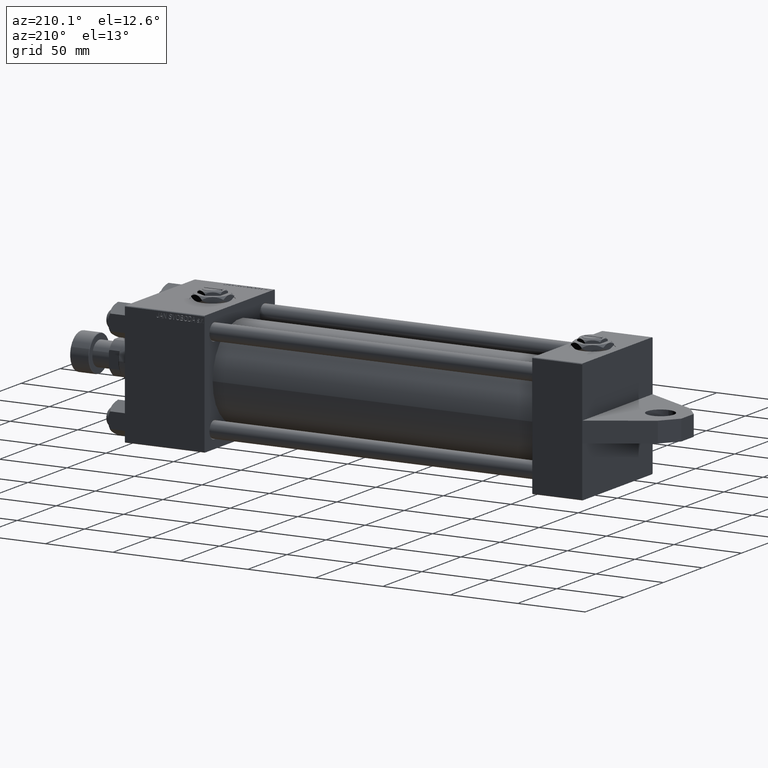
[diagram: clean part render]
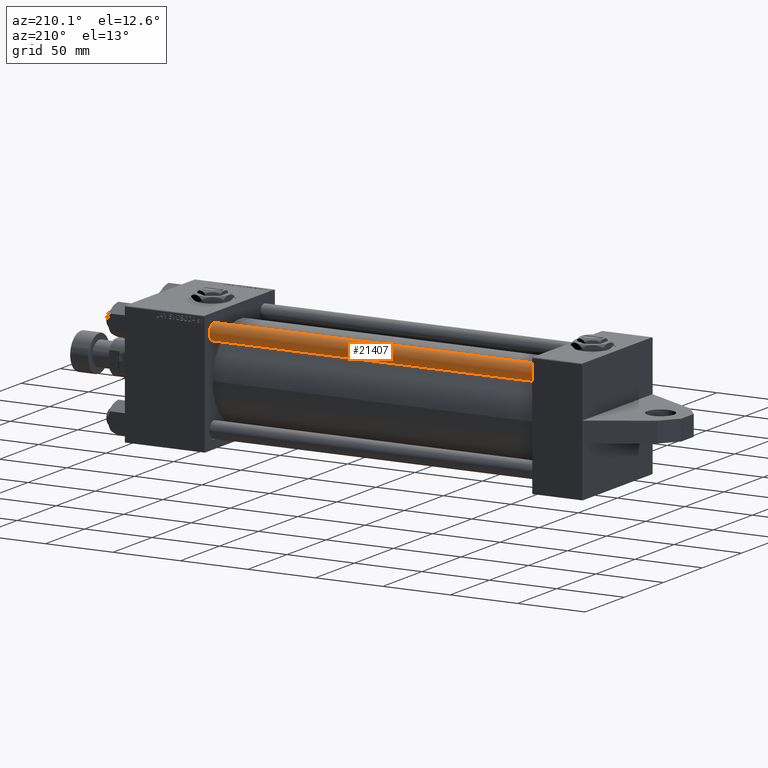
[diagram: same view with one face highlighted and labeled with its STEP entity id]
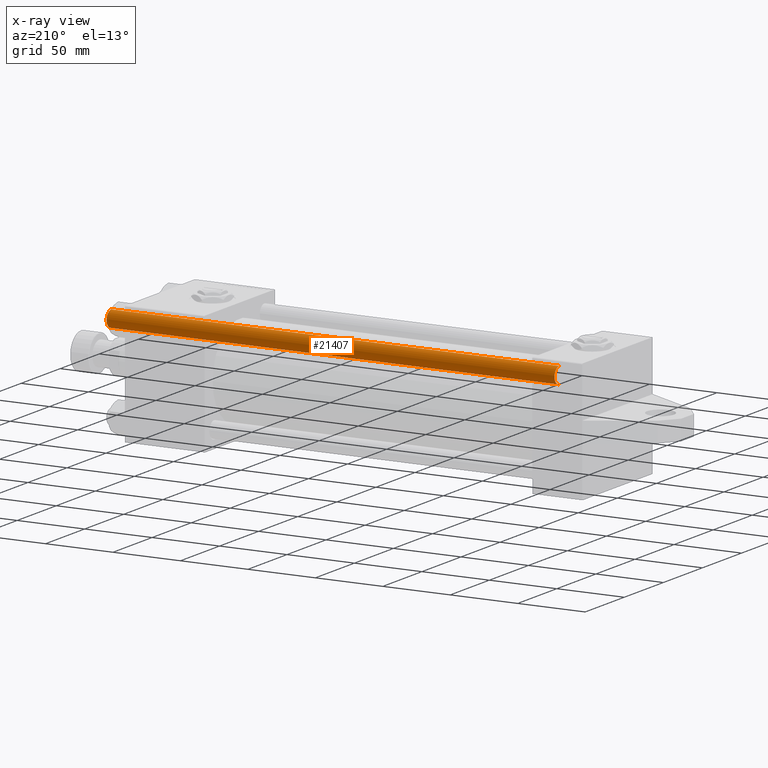
[diagram: x-ray of the same camera — body ghosted, the highlighted face saturated]
A machine part, auxiliary view. The second image highlights one B-rep face of the part: STEP entity #21407.
The next image is the same camera in x-ray: the body ghosted, the highlighted face saturated — about 0% of this face is hidden behind the body in this view.
In plain terms, the highlighted cylindrical surface (edge-blend (fillet) strip) has radius 6 mm, axis along (-1, 0, -0).
Its self-contained STEP definition (entity closure, byte-faithful):
#1582 = CARTESIAN_POINT ( 'NONE',  ( 0.000000000000000000, 0.000000000000000000, 333.0000000000000000 ) ) ;
#1717 = EDGE_CURVE ( 'NONE', #11757, #24730, #18536, .T. ) ;
#2237 = ORIENTED_EDGE ( 'NONE', *, *, #36219, .F. ) ;
#2328 = DIRECTION ( 'NONE',  ( 1.000000000000000000, 0.000000000000000000, 0.000000000000000000 ) ) ;
#4283 = AXIS2_PLACEMENT_3D ( 'NONE', #1582, #38440, #19508 ) ;
#6259 = CARTESIAN_POINT ( 'NONE',  ( 0.000000000000000000, 0.000000000000000000, 0.5000000000000004441 ) ) ;
#7567 = AXIS2_PLACEMENT_3D ( 'NONE', #41510, #7589, #26281 ) ;
#7589 = DIRECTION ( 'NONE',  ( 0.000000000000000000, 0.000000000000000000, -1.000000000000000000 ) ) ;
#8702 = CYLINDRICAL_SURFACE ( 'NONE', #4283, 6.000000000000000888 ) ;
#10409 = ORIENTED_EDGE ( 'NONE', *, *, #10697, .T. ) ;
#10697 = EDGE_CURVE ( 'NONE', #24730, #13150, #40328, .T. ) ;
#11757 = VERTEX_POINT ( 'NONE', #24062 ) ;
#12371 = CARTESIAN_POINT ( 'NONE',  ( 6.000000000000000888, 7.347880794884120722E-16, 332.5000000000001137 ) ) ;
#13150 = VERTEX_POINT ( 'NONE', #27160 ) ;
#14982 = DIRECTION ( 'NONE',  ( -0.000000000000000000, -0.000000000000000000, -1.000000000000000000 ) ) ;
#17689 = DIRECTION ( 'NONE',  ( -0.000000000000000000, -0.000000000000000000, -1.000000000000000000 ) ) ;
#18019 = DIRECTION ( 'NONE',  ( -0.000000000000000000, -0.000000000000000000, 1.000000000000000000 ) ) ;
#18184 = CARTESIAN_POINT ( 'NONE',  ( -6.000000000000000888, 0.000000000000000000, 333.0000000000000000 ) ) ;
#18412 = LINE ( 'NONE', #18184, #31335 ) ;
#18536 = CIRCLE ( 'NONE', #7567, 6.000000000000000888 ) ;
#19010 = AXIS2_PLACEMENT_3D ( 'NONE', #6259, #18019, #2328 ) ;
#19267 = EDGE_CURVE ( 'NONE', #13150, #44089, #38635, .T. ) ;
#19508 = DIRECTION ( 'NONE',  ( -1.000000000000000000, 0.000000000000000000, 0.000000000000000000 ) ) ;
#21285 = EDGE_LOOP ( 'NONE', ( #35223, #10409, #35146, #2237 ) ) ;
#21407 = ADVANCED_FACE ( 'NONE', ( #31570 ), #8702, .T. ) ;
#21645 = CARTESIAN_POINT ( 'NONE',  ( 6.000000000000000888, 7.347880794884120722E-16, 333.0000000000000000 ) ) ;
#22060 = CARTESIAN_POINT ( 'NONE',  ( -6.000000000000000888, 0.000000000000000000, 0.5000000000000004441 ) ) ;
#24062 = CARTESIAN_POINT ( 'NONE',  ( -6.000000000000000888, 0.000000000000000000, 332.5000000000001137 ) ) ;
#24730 = VERTEX_POINT ( 'NONE', #12371 ) ;
#26281 = DIRECTION ( 'NONE',  ( 1.000000000000000000, 0.000000000000000000, 0.000000000000000000 ) ) ;
#27160 = CARTESIAN_POINT ( 'NONE',  ( 6.000000000000000888, 7.347880794884120722E-16, 0.5000000000000004441 ) ) ;
#27467 = VECTOR ( 'NONE', #17689, 1000.000000000000000 ) ;
#31335 = VECTOR ( 'NONE', #14982, 1000.000000000000000 ) ;
#31570 = FACE_OUTER_BOUND ( 'NONE', #21285, .T. ) ;
#35146 = ORIENTED_EDGE ( 'NONE', *, *, #19267, .T. ) ;
#35223 = ORIENTED_EDGE ( 'NONE', *, *, #1717, .T. ) ;
#36219 = EDGE_CURVE ( 'NONE', #11757, #44089, #18412, .T. ) ;
#38440 = DIRECTION ( 'NONE',  ( -0.000000000000000000, -0.000000000000000000, -1.000000000000000000 ) ) ;
#38635 = CIRCLE ( 'NONE', #19010, 6.000000000000000888 ) ;
#40328 = LINE ( 'NONE', #21645, #27467 ) ;
#41510 = CARTESIAN_POINT ( 'NONE',  ( 0.000000000000000000, 0.000000000000000000, 332.5000000000001137 ) ) ;
#44089 = VERTEX_POINT ( 'NONE', #22060 ) ;